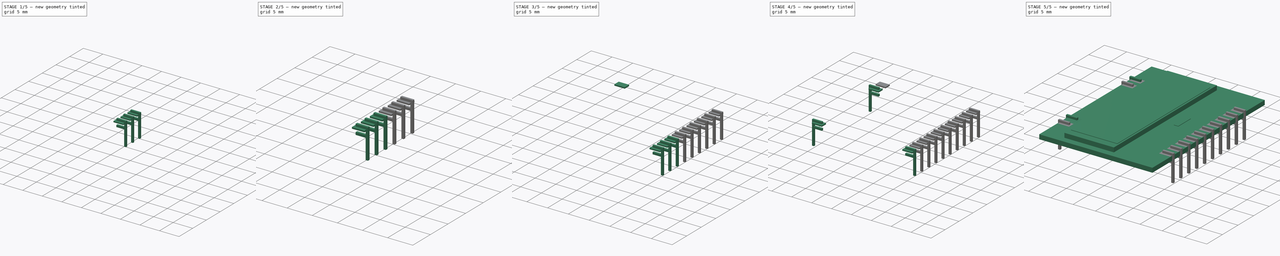
[diagram: build sequence overview — one tinted view per stage of 5, left to right]
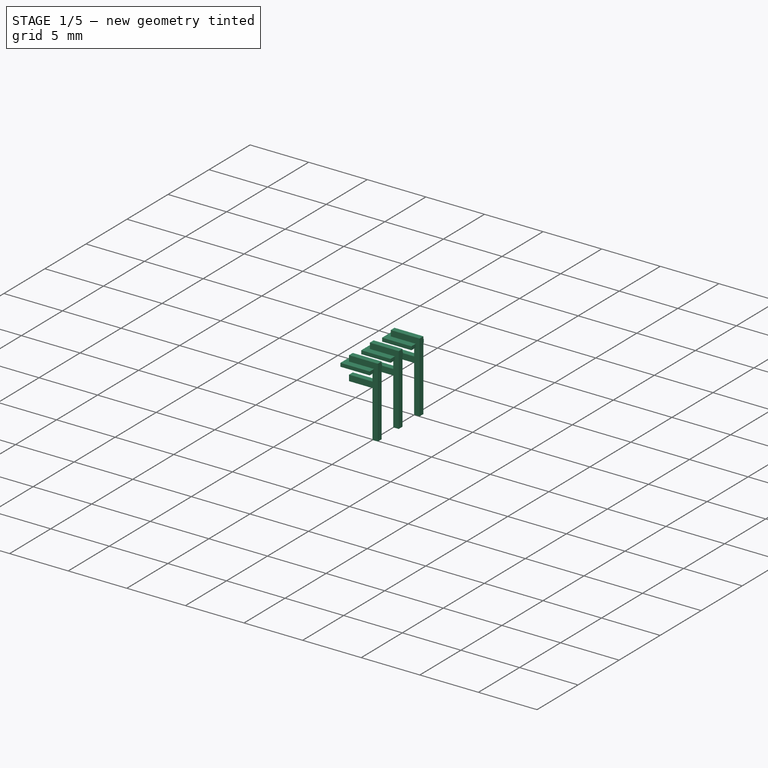
[diagram: stage 1 of 5 — iso view after this stage's code; geometry added in this stage tinted green]
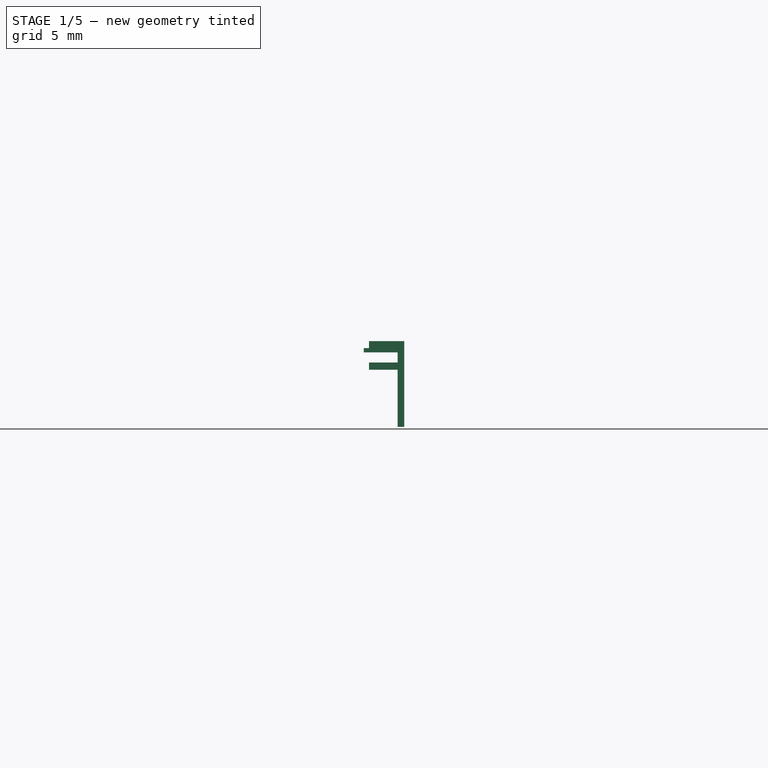
[diagram: stage 1 of 5 — front view after this stage's code; geometry added in this stage tinted green]
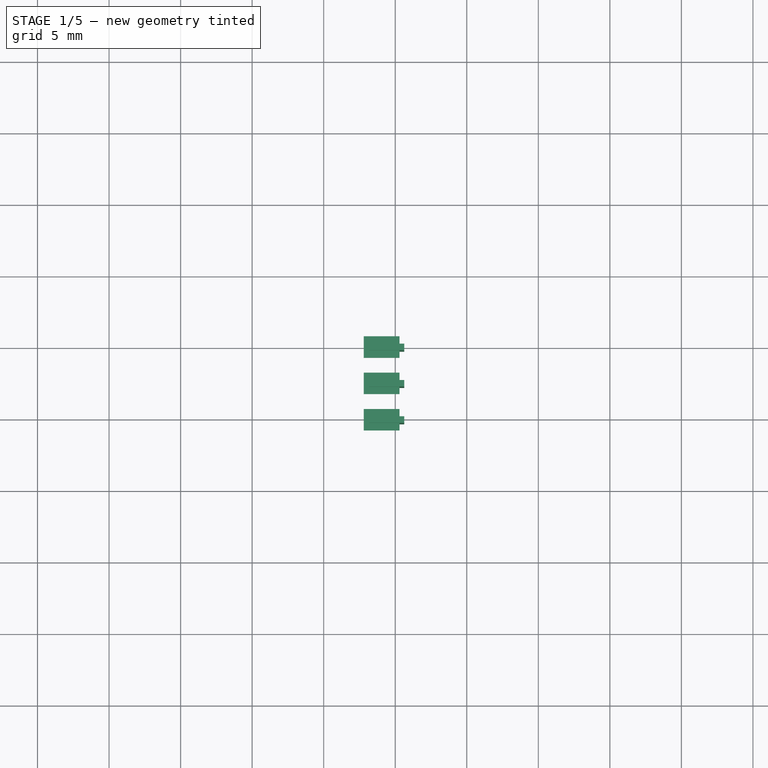
[diagram: stage 1 of 5 — top view after this stage's code; geometry added in this stage tinted green]
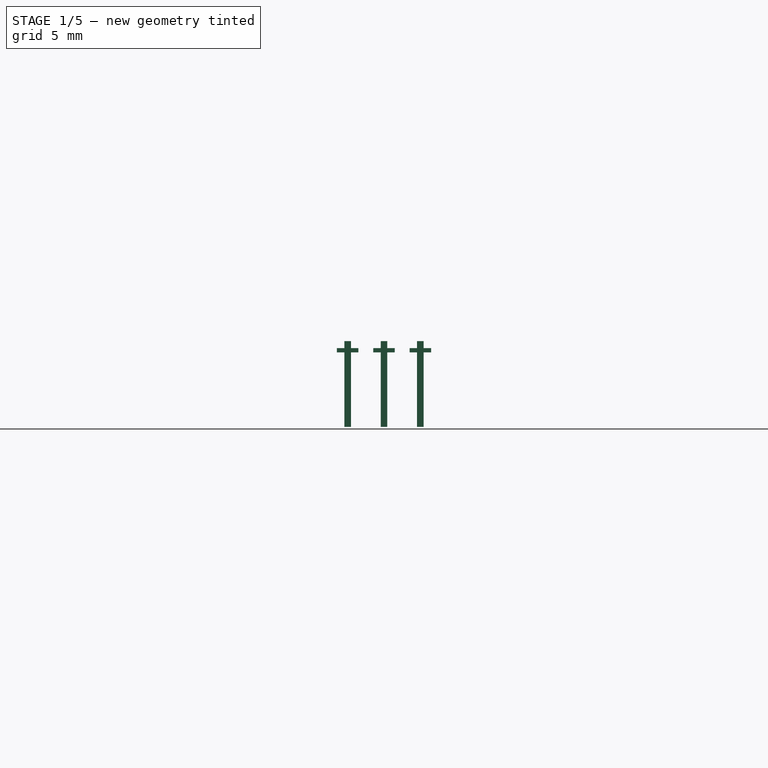
[diagram: stage 1 of 5 — right view after this stage's code; geometry added in this stage tinted green]
FCSTD DOCUMENT  (FreeCAD 0.17R11223 (Git))
Label: EA_DOGS104-A_3
License: All rights reserved
LicenseURL: http://en.wikipedia.org/wiki/All_rights_reserved
objects: Part::Box×17, Sketcher::SketchObject×15, PartDesign::Pad×15, PartDesign::Body×15, Part::MultiFuse×14, App::DocumentObjectGroup×1
note: 91 computed .brp shape members not serialized (recipe doc carries the construction recipe); baked Part::Feature solids carry a one-line shape summary decoded from their .brp

FEATURE [Sketcher::SketchObject] Sketch012
  MapMode = 5
  Placement = pos=(0,0,0) rot=(1,0,0;1.5708rad)
  Support = -> [XZ_Plane012]
  sketch-geometry (10):
    g0: LineSegment StartX=2.23 StartY=0.5 StartZ=0 EndX=2.23 EndY=1 EndZ=0
    g1: LineSegment StartX=2.23 StartY=1 StartZ=0 EndX=-0.23 EndY=1 EndZ=0
    g2: LineSegment StartX=-0.23 StartY=1 StartZ=0 EndX=-0.23 EndY=-5 EndZ=0
    g3: LineSegment StartX=-0.23 StartY=-5 StartZ=0 EndX=0.23 EndY=-5 EndZ=0
    g4: LineSegment StartX=0.23 StartY=-5 StartZ=0 EndX=0.23 EndY=-1 EndZ=0
    g5: LineSegment StartX=0.23 StartY=-1 StartZ=0 EndX=2.23 EndY=-1 EndZ=0
    g6: LineSegment StartX=2.23 StartY=-1 StartZ=0 EndX=2.23 EndY=-0.5 EndZ=0
    g7: LineSegment StartX=2.23 StartY=-0.5 StartZ=0 EndX=0.23 EndY=-0.5 EndZ=0
    g8: LineSegment StartX=0.23 StartY=-0.5 StartZ=0 EndX=0.23 EndY=0.5 EndZ=0
    g9: LineSegment StartX=0.23 StartY=0.5 StartZ=0 EndX=2.23 EndY=0.5 EndZ=0
  constraints (30):
    c: Vertical(g0)
    c: Coincident(g0,g1)
    c: Horizontal(g1)
    c: Coincident(g1,g2)
    c: Vertical(g2)
    c: Coincident(g2,g3)
    c: Horizontal(g3)
    c: Coincident(g3,g4)
    c: Vertical(g4)
    c: Coincident(g4,g5)
    c: Horizontal(g5)
    c: Coincident(g5,g6)
    c: Vertical(g6)
    c: Coincident(g6,g7)
    c: Horizontal(g7)
    c: Coincident(g7,g8)
    c: Vertical(g8)
    c: Coincident(g8,g9)
    c: Coincident(g9,g0)
    c: Horizontal(g9)
    c: DistanceY(g7,g8) = 1
    c: DistanceX(g7,g6) = 2
    c: DistanceX(g8,g0) = 2
    c: DistanceY(g5,g6) = 0.5
    c: DistanceY(g0,g0) = 0.5
    c: DistanceX(g1,g0) = 2.46
    c: DistanceY(g3,g4) = 4
    c: DistanceX(g4,g5) = 2
    c: DistanceX(g1,g-1) = 0.23
    c: DistanceY(g-1,g1) = 1
FEATURE [PartDesign::Pad] Pad012
  Length = 0.46
  Length2 = 100
  Placement = pos=(0,0,0) rot=(1,0,0;1.5708rad)
  Profile = -> Sketch012
  Type = 0
FEATURE [PartDesign::Body] Body012  label="Pin024"
  Group = -> [Sketch012,Pad012]
  Origin = -> BodyOrigin012
  Placement = pos=(0,0.23,0.5) rot=(0,0,1;0rad)
  Tip = -> Pad012
FEATURE [Part::Box] Box014  label="Kub012"
  AttacherType = Attacher::AttachEngine3D
  Height = 0.3
  Length = 2.5
  Placement = pos=(0.1,-0.75,0.71) rot=(0,0,1;0rad)
  Width = 1.5
FEATURE [Part::MultiFuse] Fusion011  label="Pin025"
  Placement = pos=(25.4,-5.08,0) rot=(0,0,1;3.14159rad)
  Shapes = -> [Body012,Box014]
FEATURE [Sketcher::SketchObject] Sketch013
  MapMode = 5
  Placement = pos=(0,0,0) rot=(1,0,0;1.5708rad)
  Support = -> [XZ_Plane013]
  sketch-geometry (10):
    g0: LineSegment StartX=2.23 StartY=0.5 StartZ=0 EndX=2.23 EndY=1 EndZ=0
    g1: LineSegment StartX=2.23 StartY=1 StartZ=0 EndX=-0.23 EndY=1 EndZ=0
    g2: LineSegment StartX=-0.23 StartY=1 StartZ=0 EndX=-0.23 EndY=-5 EndZ=0
    g3: LineSegment StartX=-0.23 StartY=-5 StartZ=0 EndX=0.23 EndY=-5 EndZ=0
    g4: LineSegment StartX=0.23 StartY=-5 StartZ=0 EndX=0.23 EndY=-1 EndZ=0
    g5: LineSegment StartX=0.23 StartY=-1 StartZ=0 EndX=2.23 EndY=-1 EndZ=0
    g6: LineSegment StartX=2.23 StartY=-1 StartZ=0 EndX=2.23 EndY=-0.5 EndZ=0
    g7: LineSegment StartX=2.23 StartY=-0.5 StartZ=0 EndX=0.23 EndY=-0.5 EndZ=0
    g8: LineSegment StartX=0.23 StartY=-0.5 StartZ=0 EndX=0.23 EndY=0.5 EndZ=0
    g9: LineSegment StartX=0.23 StartY=0.5 StartZ=0 EndX=2.23 EndY=0.5 EndZ=0
  constraints (30):
    c: Vertical(g0)
    c: Coincident(g0,g1)
    c: Horizontal(g1)
    c: Coincident(g1,g2)
    c: Vertical(g2)
    c: Coincident(g2,g3)
    c: Horizontal(g3)
    c: Coincident(g3,g4)
    c: Vertical(g4)
    c: Coincident(g4,g5)
    c: Horizontal(g5)
    c: Coincident(g5,g6)
    c: Vertical(g6)
    c: Coincident(g6,g7)
    c: Horizontal(g7)
    c: Coincident(g7,g8)
    c: Vertical(g8)
    c: Coincident(g8,g9)
    c: Coincident(g9,g0)
    c: Horizontal(g9)
    c: DistanceY(g7,g8) = 1
    c: DistanceX(g7,g6) = 2
    c: DistanceX(g8,g0) = 2
    c: DistanceY(g5,g6) = 0.5
    c: DistanceY(g0,g0) = 0.5
    c: DistanceX(g1,g0) = 2.46
    c: DistanceY(g3,g4) = 4
    c: DistanceX(g4,g5) = 2
    c: DistanceX(g1,g-1) = 0.23
    c: DistanceY(g-1,g1) = 1
FEATURE [PartDesign::Pad] Pad013
  Length = 0.46
  Length2 = 100
  Placement = pos=(0,0,0) rot=(1,0,0;1.5708rad)
  Profile = -> Sketch013
  Type = 0
FEATURE [PartDesign::Body] Body013  label="Pin026"
  Group = -> [Sketch013,Pad013]
  Origin = -> BodyOrigin013
  Placement = pos=(0,0.23,0.5) rot=(0,0,1;0rad)
  Tip = -> Pad013
FEATURE [Part::Box] Box015  label="Kub013"
  AttacherType = Attacher::AttachEngine3D
  Height = 0.3
  Length = 2.5
  Placement = pos=(0.1,-0.75,0.71) rot=(0,0,1;0rad)
  Width = 1.5
FEATURE [Part::MultiFuse] Fusion012  label="Pin027"
  Placement = pos=(25.4,-2.54,0) rot=(0,0,1;3.14159rad)
  Shapes = -> [Body013,Box015]
FEATURE [Sketcher::SketchObject] Sketch014
  MapMode = 5
  Placement = pos=(0,0,0) rot=(1,0,0;1.5708rad)
  Support = -> [XZ_Plane014]
  sketch-geometry (10):
    g0: LineSegment StartX=2.23 StartY=0.5 StartZ=0 EndX=2.23 EndY=1 EndZ=0
    g1: LineSegment StartX=2.23 StartY=1 StartZ=0 EndX=-0.23 EndY=1 EndZ=0
    g2: LineSegment StartX=-0.23 StartY=1 StartZ=0 EndX=-0.23 EndY=-5 EndZ=0
    g3: LineSegment StartX=-0.23 StartY=-5 StartZ=0 EndX=0.23 EndY=-5 EndZ=0
    g4: LineSegment StartX=0.23 StartY=-5 StartZ=0 EndX=0.23 EndY=-1 EndZ=0
    g5: LineSegment StartX=0.23 StartY=-1 StartZ=0 EndX=2.23 EndY=-1 EndZ=0
    g6: LineSegment StartX=2.23 StartY=-1 StartZ=0 EndX=2.23 EndY=-0.5 EndZ=0
    g7: LineSegment StartX=2.23 StartY=-0.5 StartZ=0 EndX=0.23 EndY=-0.5 EndZ=0
    g8: LineSegment StartX=0.23 StartY=-0.5 StartZ=0 EndX=0.23 EndY=0.5 EndZ=0
    g9: LineSegment StartX=0.23 StartY=0.5 StartZ=0 EndX=2.23 EndY=0.5 EndZ=0
  constraints (30):
    c: Vertical(g0)
    c: Coincident(g0,g1)
    c: Horizontal(g1)
    c: Coincident(g1,g2)
    c: Vertical(g2)
    c: Coincident(g2,g3)
    c: Horizontal(g3)
    c: Coincident(g3,g4)
    c: Vertical(g4)
    c: Coincident(g4,g5)
    c: Horizontal(g5)
    c: Coincident(g5,g6)
    c: Vertical(g6)
    c: Coincident(g6,g7)
    c: Horizontal(g7)
    c: Coincident(g7,g8)
    c: Vertical(g8)
    c: Coincident(g8,g9)
    c: Coincident(g9,g0)
    c: Horizontal(g9)
    c: DistanceY(g7,g8) = 1
    c: DistanceX(g7,g6) = 2
    c: DistanceX(g8,g0) = 2
    c: DistanceY(g5,g6) = 0.5
    c: DistanceY(g0,g0) = 0.5
    c: DistanceX(g1,g0) = 2.46
    c: DistanceY(g3,g4) = 4
    c: DistanceX(g4,g5) = 2
    c: DistanceX(g1,g-1) = 0.23
    c: DistanceY(g-1,g1) = 1
FEATURE [PartDesign::Pad] Pad014
  Length = 0.46
  Length2 = 100
  Placement = pos=(0,0,0) rot=(1,0,0;1.5708rad)
  Profile = -> Sketch014
  Type = 0
FEATURE [PartDesign::Body] Body014  label="Pin028"
  Group = -> [Sketch014,Pad014]
  Origin = -> BodyOrigin014
  Placement = pos=(0,0.23,0.5) rot=(0,0,1;0rad)
  Tip = -> Pad014
FEATURE [Part::Box] Box016  label="Kub014"
  AttacherType = Attacher::AttachEngine3D
  Height = 0.3
  Length = 2.5
  Placement = pos=(0.1,-0.75,0.71) rot=(0,0,1;0rad)
  Width = 1.5
FEATURE [Part::MultiFuse] Fusion013  label="Pin029"
  Placement = pos=(25.4,0,0) rot=(0,0,1;3.14159rad)
  Shapes = -> [Body014,Box016]
FEATURE [App::DocumentObjectGroup] Grupp  label="Pins"
  Group = -> [Fusion,Fusion003,Fusion001,Fusion004,Fusion002,Fusion005,Fusion006,Fusion007,Fusion008,Fusion009,Fusion010,Fusion011,Fusion012,Fusion013]
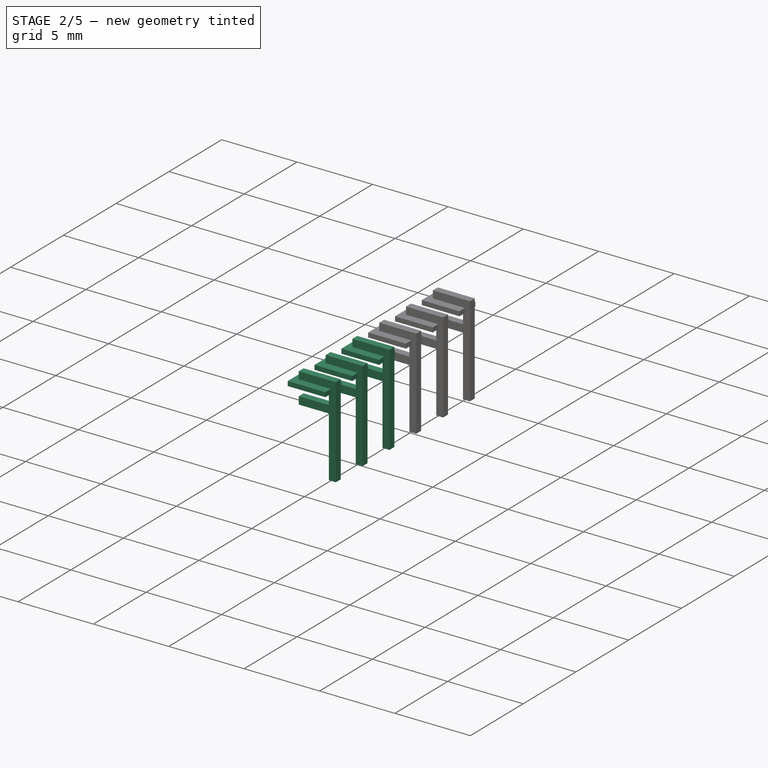
[diagram: stage 2 of 5 — iso view after this stage's code; geometry added in this stage tinted green]
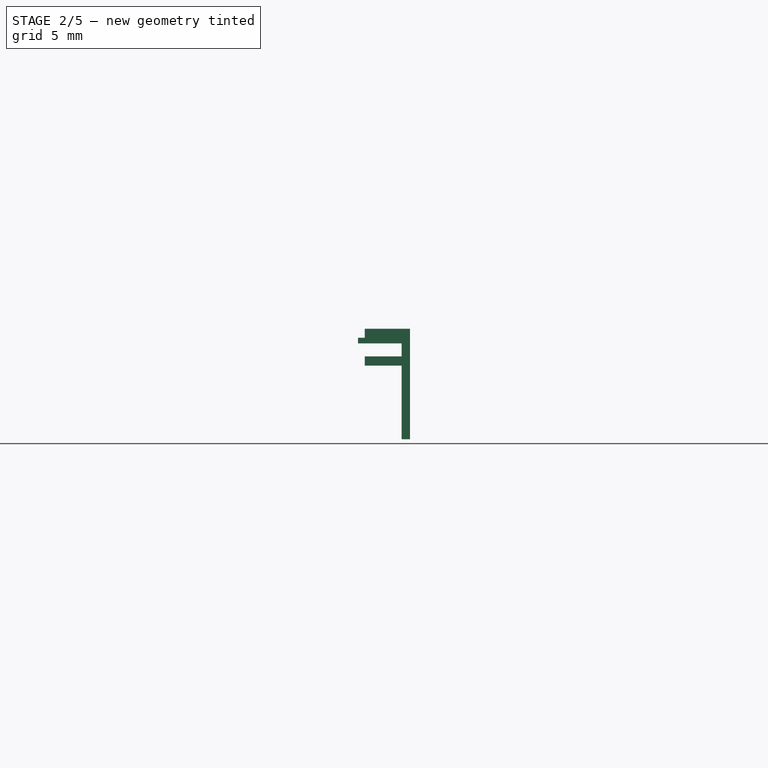
[diagram: stage 2 of 5 — front view after this stage's code; geometry added in this stage tinted green]
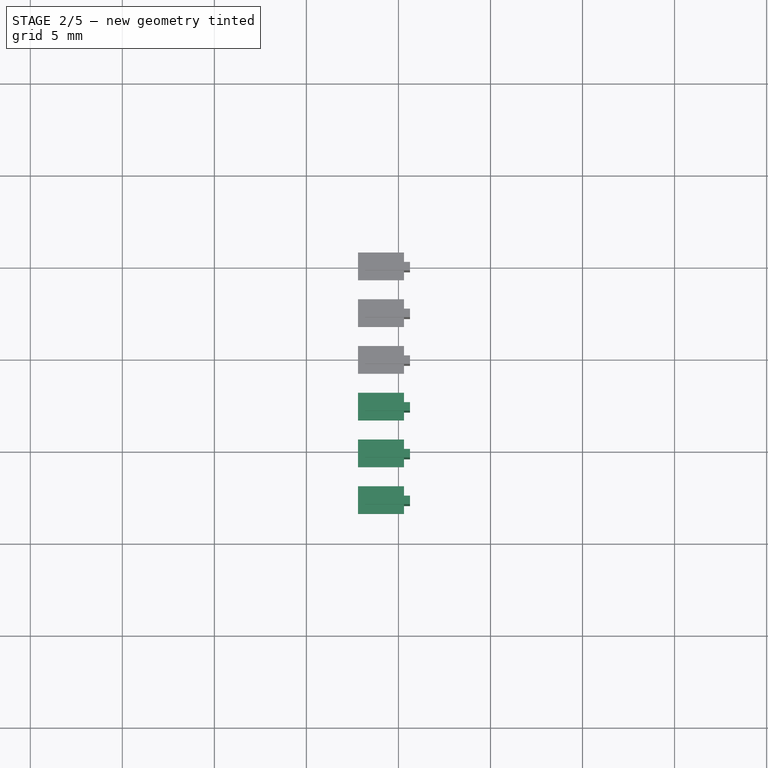
[diagram: stage 2 of 5 — top view after this stage's code; geometry added in this stage tinted green]
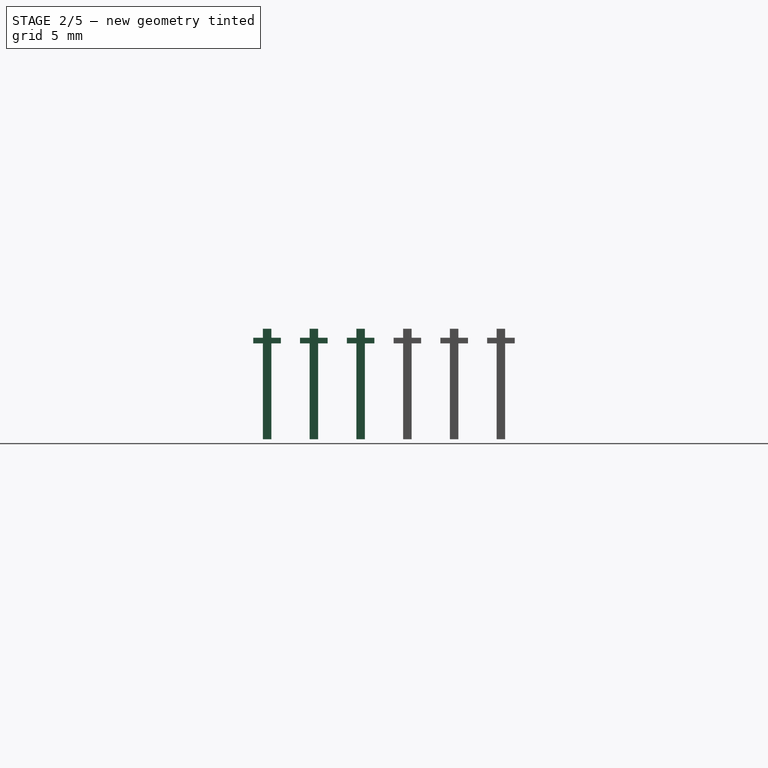
[diagram: stage 2 of 5 — right view after this stage's code; geometry added in this stage tinted green]
FEATURE [Sketcher::SketchObject] Sketch009
  MapMode = 5
  Placement = pos=(0,0,0) rot=(1,0,0;1.5708rad)
  Support = -> [XZ_Plane009]
  sketch-geometry (10):
    g0: LineSegment StartX=2.23 StartY=0.5 StartZ=0 EndX=2.23 EndY=1 EndZ=0
    g1: LineSegment StartX=2.23 StartY=1 StartZ=0 EndX=-0.23 EndY=1 EndZ=0
    g2: LineSegment StartX=-0.23 StartY=1 StartZ=0 EndX=-0.23 EndY=-5 EndZ=0
    g3: LineSegment StartX=-0.23 StartY=-5 StartZ=0 EndX=0.23 EndY=-5 EndZ=0
    g4: LineSegment StartX=0.23 StartY=-5 StartZ=0 EndX=0.23 EndY=-1 EndZ=0
    g5: LineSegment StartX=0.23 StartY=-1 StartZ=0 EndX=2.23 EndY=-1 EndZ=0
    g6: LineSegment StartX=2.23 StartY=-1 StartZ=0 EndX=2.23 EndY=-0.5 EndZ=0
    g7: LineSegment StartX=2.23 StartY=-0.5 StartZ=0 EndX=0.23 EndY=-0.5 EndZ=0
    g8: LineSegment StartX=0.23 StartY=-0.5 StartZ=0 EndX=0.23 EndY=0.5 EndZ=0
    g9: LineSegment StartX=0.23 StartY=0.5 StartZ=0 EndX=2.23 EndY=0.5 EndZ=0
  constraints (30):
    c: Vertical(g0)
    c: Coincident(g0,g1)
    c: Horizontal(g1)
    c: Coincident(g1,g2)
    c: Vertical(g2)
    c: Coincident(g2,g3)
    c: Horizontal(g3)
    c: Coincident(g3,g4)
    c: Vertical(g4)
    c: Coincident(g4,g5)
    c: Horizontal(g5)
    c: Coincident(g5,g6)
    c: Vertical(g6)
    c: Coincident(g6,g7)
    c: Horizontal(g7)
    c: Coincident(g7,g8)
    c: Vertical(g8)
    c: Coincident(g8,g9)
    c: Coincident(g9,g0)
    c: Horizontal(g9)
    c: DistanceY(g7,g8) = 1
    c: DistanceX(g7,g6) = 2
    c: DistanceX(g8,g0) = 2
    c: DistanceY(g5,g6) = 0.5
    c: DistanceY(g0,g0) = 0.5
    c: DistanceX(g1,g0) = 2.46
    c: DistanceY(g3,g4) = 4
    c: DistanceX(g4,g5) = 2
    c: DistanceX(g1,g-1) = 0.23
    c: DistanceY(g-1,g1) = 1
FEATURE [PartDesign::Pad] Pad009
  Length = 0.46
  Length2 = 100
  Placement = pos=(0,0,0) rot=(1,0,0;1.5708rad)
  Profile = -> Sketch009
  Type = 0
FEATURE [PartDesign::Body] Body009  label="Pin018"
  Group = -> [Sketch009,Pad009]
  Origin = -> BodyOrigin009
  Placement = pos=(0,0.23,0.5) rot=(0,0,1;0rad)
  Tip = -> Pad009
FEATURE [Part::Box] Box011  label="Kub009"
  AttacherType = Attacher::AttachEngine3D
  Height = 0.3
  Length = 2.5
  Placement = pos=(0.1,-0.75,0.71) rot=(0,0,1;0rad)
  Width = 1.5
FEATURE [Part::MultiFuse] Fusion008  label="Pin019"
  Placement = pos=(25.4,-12.7,0) rot=(0,0,1;3.14159rad)
  Shapes = -> [Body009,Box011]
FEATURE [Sketcher::SketchObject] Sketch010
  MapMode = 5
  Placement = pos=(0,0,0) rot=(1,0,0;1.5708rad)
  Support = -> [XZ_Plane010]
  sketch-geometry (10):
    g0: LineSegment StartX=2.23 StartY=0.5 StartZ=0 EndX=2.23 EndY=1 EndZ=0
    g1: LineSegment StartX=2.23 StartY=1 StartZ=0 EndX=-0.23 EndY=1 EndZ=0
    g2: LineSegment StartX=-0.23 StartY=1 StartZ=0 EndX=-0.23 EndY=-5 EndZ=0
    g3: LineSegment StartX=-0.23 StartY=-5 StartZ=0 EndX=0.23 EndY=-5 EndZ=0
    g4: LineSegment StartX=0.23 StartY=-5 StartZ=0 EndX=0.23 EndY=-1 EndZ=0
    g5: LineSegment StartX=0.23 StartY=-1 StartZ=0 EndX=2.23 EndY=-1 EndZ=0
    g6: LineSegment StartX=2.23 StartY=-1 StartZ=0 EndX=2.23 EndY=-0.5 EndZ=0
    g7: LineSegment StartX=2.23 StartY=-0.5 StartZ=0 EndX=0.23 EndY=-0.5 EndZ=0
    g8: LineSegment StartX=0.23 StartY=-0.5 StartZ=0 EndX=0.23 EndY=0.5 EndZ=0
    g9: LineSegment StartX=0.23 StartY=0.5 StartZ=0 EndX=2.23 EndY=0.5 EndZ=0
  constraints (30):
    c: Vertical(g0)
    c: Coincident(g0,g1)
    c: Horizontal(g1)
    c: Coincident(g1,g2)
    c: Vertical(g2)
    c: Coincident(g2,g3)
    c: Horizontal(g3)
    c: Coincident(g3,g4)
    c: Vertical(g4)
    c: Coincident(g4,g5)
    c: Horizontal(g5)
    c: Coincident(g5,g6)
    c: Vertical(g6)
    c: Coincident(g6,g7)
    c: Horizontal(g7)
    c: Coincident(g7,g8)
    c: Vertical(g8)
    c: Coincident(g8,g9)
    c: Coincident(g9,g0)
    c: Horizontal(g9)
    c: DistanceY(g7,g8) = 1
    c: DistanceX(g7,g6) = 2
    c: DistanceX(g8,g0) = 2
    c: DistanceY(g5,g6) = 0.5
    c: DistanceY(g0,g0) = 0.5
    c: DistanceX(g1,g0) = 2.46
    c: DistanceY(g3,g4) = 4
    c: DistanceX(g4,g5) = 2
    c: DistanceX(g1,g-1) = 0.23
    c: DistanceY(g-1,g1) = 1
FEATURE [PartDesign::Pad] Pad010
  Length = 0.46
  Length2 = 100
  Placement = pos=(0,0,0) rot=(1,0,0;1.5708rad)
  Profile = -> Sketch010
  Type = 0
FEATURE [PartDesign::Body] Body010  label="Pin020"
  Group = -> [Sketch010,Pad010]
  Origin = -> BodyOrigin010
  Placement = pos=(0,0.23,0.5) rot=(0,0,1;0rad)
  Tip = -> Pad010
FEATURE [Part::Box] Box012  label="Kub010"
  AttacherType = Attacher::AttachEngine3D
  Height = 0.3
  Length = 2.5
  Placement = pos=(0.1,-0.75,0.71) rot=(0,0,1;0rad)
  Width = 1.5
FEATURE [Part::MultiFuse] Fusion009  label="Pin021"
  Placement = pos=(25.4,-10.16,0) rot=(0,0,1;3.14159rad)
  Shapes = -> [Body010,Box012]
FEATURE [Sketcher::SketchObject] Sketch011
  MapMode = 5
  Placement = pos=(0,0,0) rot=(1,0,0;1.5708rad)
  Support = -> [XZ_Plane011]
  sketch-geometry (10):
    g0: LineSegment StartX=2.23 StartY=0.5 StartZ=0 EndX=2.23 EndY=1 EndZ=0
    g1: LineSegment StartX=2.23 StartY=1 StartZ=0 EndX=-0.23 EndY=1 EndZ=0
    g2: LineSegment StartX=-0.23 StartY=1 StartZ=0 EndX=-0.23 EndY=-5 EndZ=0
    g3: LineSegment StartX=-0.23 StartY=-5 StartZ=0 EndX=0.23 EndY=-5 EndZ=0
    g4: LineSegment StartX=0.23 StartY=-5 StartZ=0 EndX=0.23 EndY=-1 EndZ=0
    g5: LineSegment StartX=0.23 StartY=-1 StartZ=0 EndX=2.23 EndY=-1 EndZ=0
    g6: LineSegment StartX=2.23 StartY=-1 StartZ=0 EndX=2.23 EndY=-0.5 EndZ=0
    g7: LineSegment StartX=2.23 StartY=-0.5 StartZ=0 EndX=0.23 EndY=-0.5 EndZ=0
    g8: LineSegment StartX=0.23 StartY=-0.5 StartZ=0 EndX=0.23 EndY=0.5 EndZ=0
    g9: LineSegment StartX=0.23 StartY=0.5 StartZ=0 EndX=2.23 EndY=0.5 EndZ=0
  constraints (30):
    c: Vertical(g0)
    c: Coincident(g0,g1)
    c: Horizontal(g1)
    c: Coincident(g1,g2)
    c: Vertical(g2)
    c: Coincident(g2,g3)
    c: Horizontal(g3)
    c: Coincident(g3,g4)
    c: Vertical(g4)
    c: Coincident(g4,g5)
    c: Horizontal(g5)
    c: Coincident(g5,g6)
    c: Vertical(g6)
    c: Coincident(g6,g7)
    c: Horizontal(g7)
    c: Coincident(g7,g8)
    c: Vertical(g8)
    c: Coincident(g8,g9)
    c: Coincident(g9,g0)
    c: Horizontal(g9)
    c: DistanceY(g7,g8) = 1
    c: DistanceX(g7,g6) = 2
    c: DistanceX(g8,g0) = 2
    c: DistanceY(g5,g6) = 0.5
    c: DistanceY(g0,g0) = 0.5
    c: DistanceX(g1,g0) = 2.46
    c: DistanceY(g3,g4) = 4
    c: DistanceX(g4,g5) = 2
    c: DistanceX(g1,g-1) = 0.23
    c: DistanceY(g-1,g1) = 1
FEATURE [PartDesign::Pad] Pad011
  Length = 0.46
  Length2 = 100
  Placement = pos=(0,0,0) rot=(1,0,0;1.5708rad)
  Profile = -> Sketch011
  Type = 0
FEATURE [PartDesign::Body] Body011  label="Pin022"
  Group = -> [Sketch011,Pad011]
  Origin = -> BodyOrigin011
  Placement = pos=(0,0.23,0.5) rot=(0,0,1;0rad)
  Tip = -> Pad011
FEATURE [Part::Box] Box013  label="Kub011"
  AttacherType = Attacher::AttachEngine3D
  Height = 0.3
  Length = 2.5
  Placement = pos=(0.1,-0.75,0.71) rot=(0,0,1;0rad)
  Width = 1.5
FEATURE [Part::MultiFuse] Fusion010  label="Pin023"
  Placement = pos=(25.4,-7.62,0) rot=(0,0,1;3.14159rad)
  Shapes = -> [Body011,Box013]
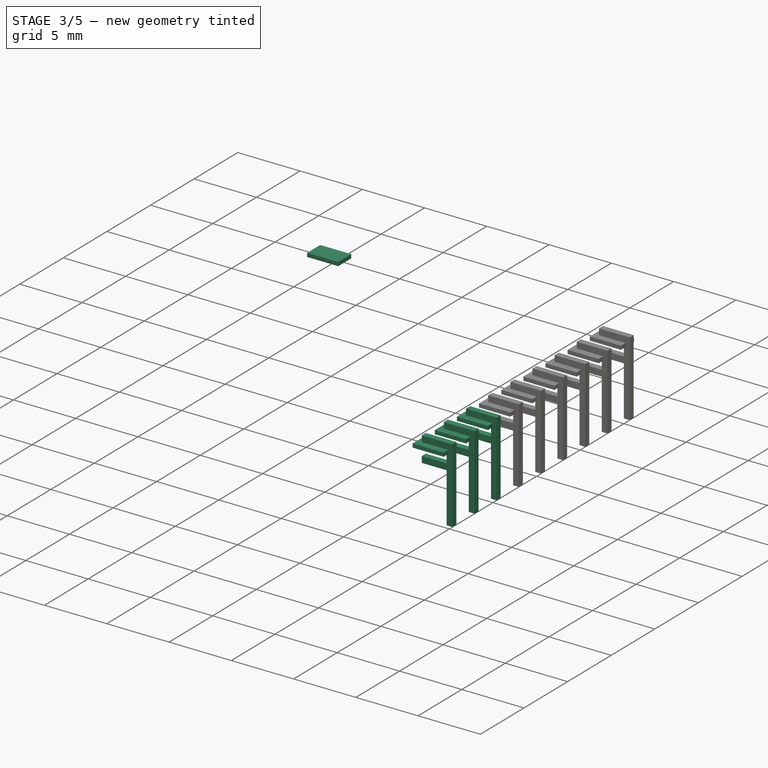
[diagram: stage 3 of 5 — iso view after this stage's code; geometry added in this stage tinted green]
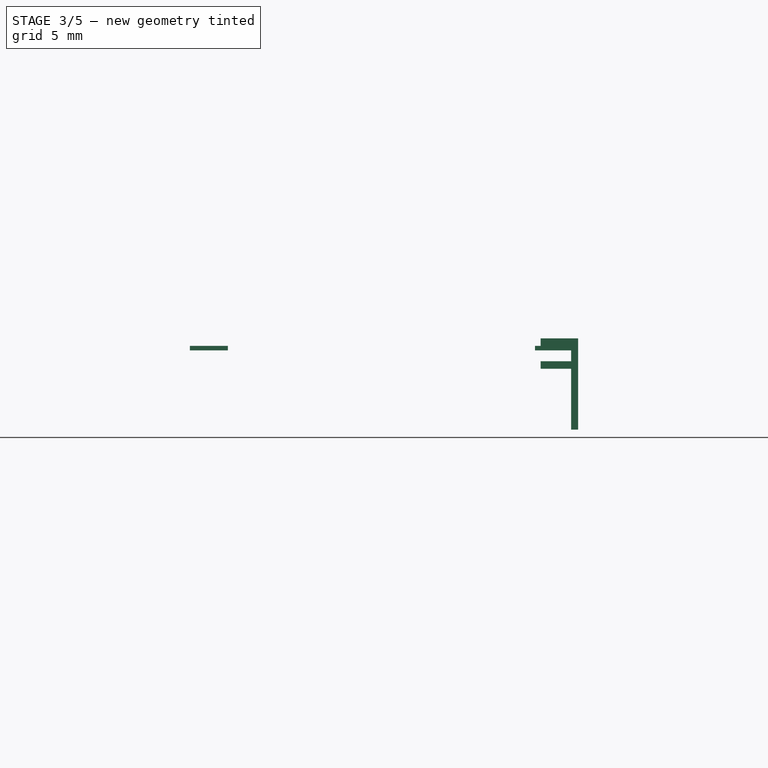
[diagram: stage 3 of 5 — front view after this stage's code; geometry added in this stage tinted green]
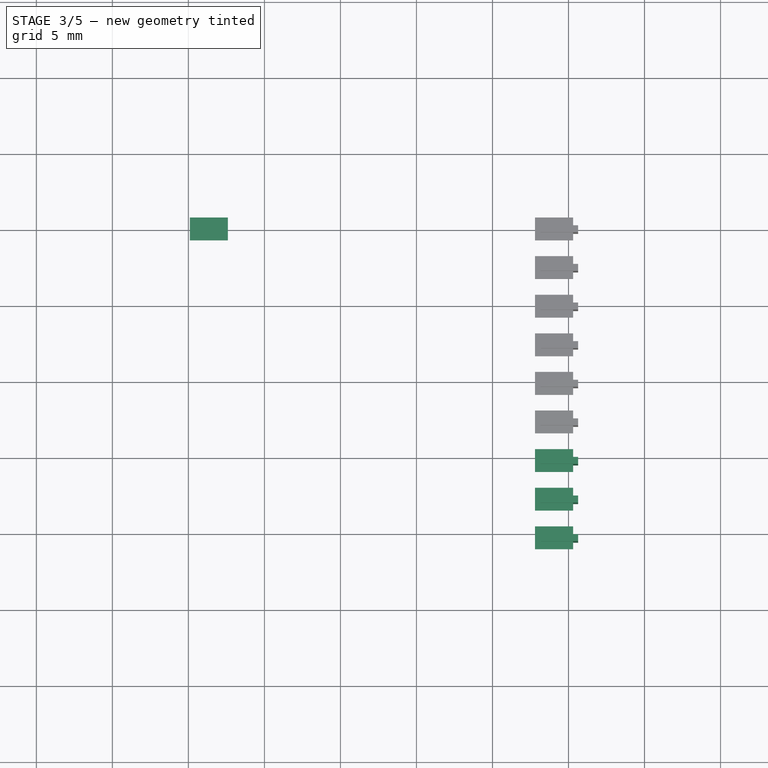
[diagram: stage 3 of 5 — top view after this stage's code; geometry added in this stage tinted green]
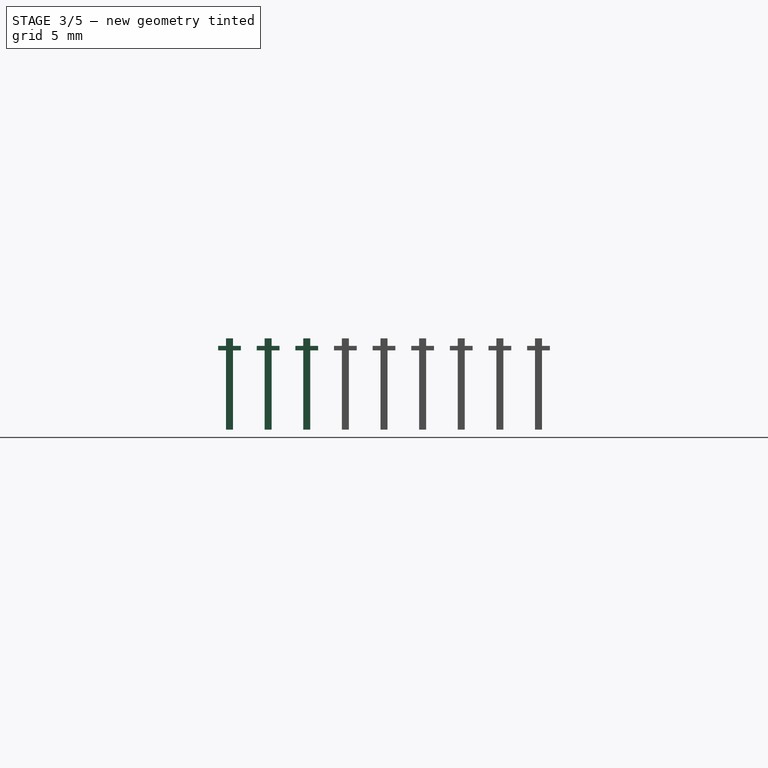
[diagram: stage 3 of 5 — right view after this stage's code; geometry added in this stage tinted green]
FEATURE [PartDesign::Body] Body005  label="Pin007"
  Group = -> [Sketch005,Pad005]
  Origin = -> BodyOrigin005
  Placement = pos=(0,0.23,0.5) rot=(0,0,1;0rad)
  Tip = -> Pad005
FEATURE [Part::Box] Box007  label="Kub005"
  AttacherType = Attacher::AttachEngine3D
  Height = 0.3
  Length = 2.5
  Placement = pos=(0.1,-0.75,0.71) rot=(0,0,1;0rad)
  Width = 1.5
FEATURE [Sketcher::SketchObject] Sketch006
  MapMode = 5
  Placement = pos=(0,0,0) rot=(1,0,0;1.5708rad)
  Support = -> [XZ_Plane006]
  sketch-geometry (10):
    g0: LineSegment StartX=2.23 StartY=0.5 StartZ=0 EndX=2.23 EndY=1 EndZ=0
    g1: LineSegment StartX=2.23 StartY=1 StartZ=0 EndX=-0.23 EndY=1 EndZ=0
    g2: LineSegment StartX=-0.23 StartY=1 StartZ=0 EndX=-0.23 EndY=-5 EndZ=0
    g3: LineSegment StartX=-0.23 StartY=-5 StartZ=0 EndX=0.23 EndY=-5 EndZ=0
    g4: LineSegment StartX=0.23 StartY=-5 StartZ=0 EndX=0.23 EndY=-1 EndZ=0
    g5: LineSegment StartX=0.23 StartY=-1 StartZ=0 EndX=2.23 EndY=-1 EndZ=0
    g6: LineSegment StartX=2.23 StartY=-1 StartZ=0 EndX=2.23 EndY=-0.5 EndZ=0
    g7: LineSegment StartX=2.23 StartY=-0.5 StartZ=0 EndX=0.23 EndY=-0.5 EndZ=0
    g8: LineSegment StartX=0.23 StartY=-0.5 StartZ=0 EndX=0.23 EndY=0.5 EndZ=0
    g9: LineSegment StartX=0.23 StartY=0.5 StartZ=0 EndX=2.23 EndY=0.5 EndZ=0
  constraints (30):
    c: Vertical(g0)
    c: Coincident(g0,g1)
    c: Horizontal(g1)
    c: Coincident(g1,g2)
    c: Vertical(g2)
    c: Coincident(g2,g3)
    c: Horizontal(g3)
    c: Coincident(g3,g4)
    c: Vertical(g4)
    c: Coincident(g4,g5)
    c: Horizontal(g5)
    c: Coincident(g5,g6)
    c: Vertical(g6)
    c: Coincident(g6,g7)
    c: Horizontal(g7)
    c: Coincident(g7,g8)
    c: Vertical(g8)
    c: Coincident(g8,g9)
    c: Coincident(g9,g0)
    c: Horizontal(g9)
    c: DistanceY(g7,g8) = 1
    c: DistanceX(g7,g6) = 2
    c: DistanceX(g8,g0) = 2
    c: DistanceY(g5,g6) = 0.5
    c: DistanceY(g0,g0) = 0.5
    c: DistanceX(g1,g0) = 2.46
    c: DistanceY(g3,g4) = 4
    c: DistanceX(g4,g5) = 2
    c: DistanceX(g1,g-1) = 0.23
    c: DistanceY(g-1,g1) = 1
FEATURE [PartDesign::Pad] Pad006
  Length = 0.46
  Length2 = 100
  Placement = pos=(0,0,0) rot=(1,0,0;1.5708rad)
  Profile = -> Sketch006
  Type = 0
FEATURE [PartDesign::Body] Body006  label="Pin012"
  Group = -> [Sketch006,Pad006]
  Origin = -> BodyOrigin006
  Placement = pos=(0,0.23,0.5) rot=(0,0,1;0rad)
  Tip = -> Pad006
FEATURE [Part::Box] Box008  label="Kub006"
  AttacherType = Attacher::AttachEngine3D
  Height = 0.3
  Length = 2.5
  Placement = pos=(0.1,-0.75,0.71) rot=(0,0,1;0rad)
  Width = 1.5
FEATURE [Part::MultiFuse] Fusion005  label="Pin013"
  Placement = pos=(25.4,-20.32,0) rot=(0,0,1;3.14159rad)
  Shapes = -> [Body006,Box008]
FEATURE [Sketcher::SketchObject] Sketch007
  MapMode = 5
  Placement = pos=(0,0,0) rot=(1,0,0;1.5708rad)
  Support = -> [XZ_Plane007]
  sketch-geometry (10):
    g0: LineSegment StartX=2.23 StartY=0.5 StartZ=0 EndX=2.23 EndY=1 EndZ=0
    g1: LineSegment StartX=2.23 StartY=1 StartZ=0 EndX=-0.23 EndY=1 EndZ=0
    g2: LineSegment StartX=-0.23 StartY=1 StartZ=0 EndX=-0.23 EndY=-5 EndZ=0
    g3: LineSegment StartX=-0.23 StartY=-5 StartZ=0 EndX=0.23 EndY=-5 EndZ=0
    g4: LineSegment StartX=0.23 StartY=-5 StartZ=0 EndX=0.23 EndY=-1 EndZ=0
    g5: LineSegment StartX=0.23 StartY=-1 StartZ=0 EndX=2.23 EndY=-1 EndZ=0
    g6: LineSegment StartX=2.23 StartY=-1 StartZ=0 EndX=2.23 EndY=-0.5 EndZ=0
    g7: LineSegment StartX=2.23 StartY=-0.5 StartZ=0 EndX=0.23 EndY=-0.5 EndZ=0
    g8: LineSegment StartX=0.23 StartY=-0.5 StartZ=0 EndX=0.23 EndY=0.5 EndZ=0
    g9: LineSegment StartX=0.23 StartY=0.5 StartZ=0 EndX=2.23 EndY=0.5 EndZ=0
  constraints (30):
    c: Vertical(g0)
    c: Coincident(g0,g1)
    c: Horizontal(g1)
    c: Coincident(g1,g2)
    c: Vertical(g2)
    c: Coincident(g2,g3)
    c: Horizontal(g3)
    c: Coincident(g3,g4)
    c: Vertical(g4)
    c: Coincident(g4,g5)
    c: Horizontal(g5)
    c: Coincident(g5,g6)
    c: Vertical(g6)
    c: Coincident(g6,g7)
    c: Horizontal(g7)
    c: Coincident(g7,g8)
    c: Vertical(g8)
    c: Coincident(g8,g9)
    c: Coincident(g9,g0)
    c: Horizontal(g9)
    c: DistanceY(g7,g8) = 1
    c: DistanceX(g7,g6) = 2
    c: DistanceX(g8,g0) = 2
    c: DistanceY(g5,g6) = 0.5
    c: DistanceY(g0,g0) = 0.5
    c: DistanceX(g1,g0) = 2.46
    c: DistanceY(g3,g4) = 4
    c: DistanceX(g4,g5) = 2
    c: DistanceX(g1,g-1) = 0.23
    c: DistanceY(g-1,g1) = 1
FEATURE [PartDesign::Pad] Pad007
  Length = 0.46
  Length2 = 100
  Placement = pos=(0,0,0) rot=(1,0,0;1.5708rad)
  Profile = -> Sketch007
  Type = 0
FEATURE [PartDesign::Body] Body007  label="Pin014"
  Group = -> [Sketch007,Pad007]
  Origin = -> BodyOrigin007
  Placement = pos=(0,0.23,0.5) rot=(0,0,1;0rad)
  Tip = -> Pad007
FEATURE [Part::Box] Box009  label="Kub007"
  AttacherType = Attacher::AttachEngine3D
  Height = 0.3
  Length = 2.5
  Placement = pos=(0.1,-0.75,0.71) rot=(0,0,1;0rad)
  Width = 1.5
FEATURE [Part::MultiFuse] Fusion006  label="Pin015"
  Placement = pos=(25.4,-17.78,0) rot=(0,0,1;3.14159rad)
  Shapes = -> [Body007,Box009]
FEATURE [Sketcher::SketchObject] Sketch008
  MapMode = 5
  Placement = pos=(0,0,0) rot=(1,0,0;1.5708rad)
  Support = -> [XZ_Plane008]
  sketch-geometry (10):
    g0: LineSegment StartX=2.23 StartY=0.5 StartZ=0 EndX=2.23 EndY=1 EndZ=0
    g1: LineSegment StartX=2.23 StartY=1 StartZ=0 EndX=-0.23 EndY=1 EndZ=0
    g2: LineSegment StartX=-0.23 StartY=1 StartZ=0 EndX=-0.23 EndY=-5 EndZ=0
    g3: LineSegment StartX=-0.23 StartY=-5 StartZ=0 EndX=0.23 EndY=-5 EndZ=0
    g4: LineSegment StartX=0.23 StartY=-5 StartZ=0 EndX=0.23 EndY=-1 EndZ=0
    g5: LineSegment StartX=0.23 StartY=-1 StartZ=0 EndX=2.23 EndY=-1 EndZ=0
    g6: LineSegment StartX=2.23 StartY=-1 StartZ=0 EndX=2.23 EndY=-0.5 EndZ=0
    g7: LineSegment StartX=2.23 StartY=-0.5 StartZ=0 EndX=0.23 EndY=-0.5 EndZ=0
    g8: LineSegment StartX=0.23 StartY=-0.5 StartZ=0 EndX=0.23 EndY=0.5 EndZ=0
    g9: LineSegment StartX=0.23 StartY=0.5 StartZ=0 EndX=2.23 EndY=0.5 EndZ=0
  constraints (30):
    c: Vertical(g0)
    c: Coincident(g0,g1)
    c: Horizontal(g1)
    c: Coincident(g1,g2)
    c: Vertical(g2)
    c: Coincident(g2,g3)
    c: Horizontal(g3)
    c: Coincident(g3,g4)
    c: Vertical(g4)
    c: Coincident(g4,g5)
    c: Horizontal(g5)
    c: Coincident(g5,g6)
    c: Vertical(g6)
    c: Coincident(g6,g7)
    c: Horizontal(g7)
    c: Coincident(g7,g8)
    c: Vertical(g8)
    c: Coincident(g8,g9)
    c: Coincident(g9,g0)
    c: Horizontal(g9)
    c: DistanceY(g7,g8) = 1
    c: DistanceX(g7,g6) = 2
    c: DistanceX(g8,g0) = 2
    c: DistanceY(g5,g6) = 0.5
    c: DistanceY(g0,g0) = 0.5
    c: DistanceX(g1,g0) = 2.46
    c: DistanceY(g3,g4) = 4
    c: DistanceX(g4,g5) = 2
    c: DistanceX(g1,g-1) = 0.23
    c: DistanceY(g-1,g1) = 1
FEATURE [PartDesign::Pad] Pad008
  Length = 0.46
  Length2 = 100
  Placement = pos=(0,0,0) rot=(1,0,0;1.5708rad)
  Profile = -> Sketch008
  Type = 0
FEATURE [PartDesign::Body] Body008  label="Pin016"
  Group = -> [Sketch008,Pad008]
  Origin = -> BodyOrigin008
  Placement = pos=(0,0.23,0.5) rot=(0,0,1;0rad)
  Tip = -> Pad008
FEATURE [Part::Box] Box010  label="Kub008"
  AttacherType = Attacher::AttachEngine3D
  Height = 0.3
  Length = 2.5
  Placement = pos=(0.1,-0.75,0.71) rot=(0,0,1;0rad)
  Width = 1.5
FEATURE [Part::MultiFuse] Fusion007  label="Pin017"
  Placement = pos=(25.4,-15.24,0) rot=(0,0,1;3.14159rad)
  Shapes = -> [Body008,Box010]
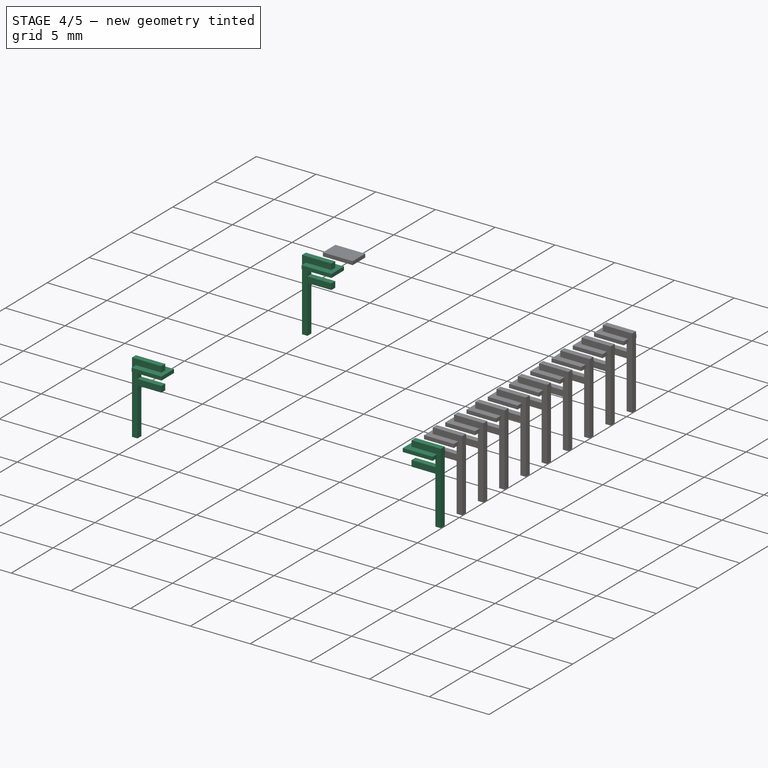
[diagram: stage 4 of 5 — iso view after this stage's code; geometry added in this stage tinted green]
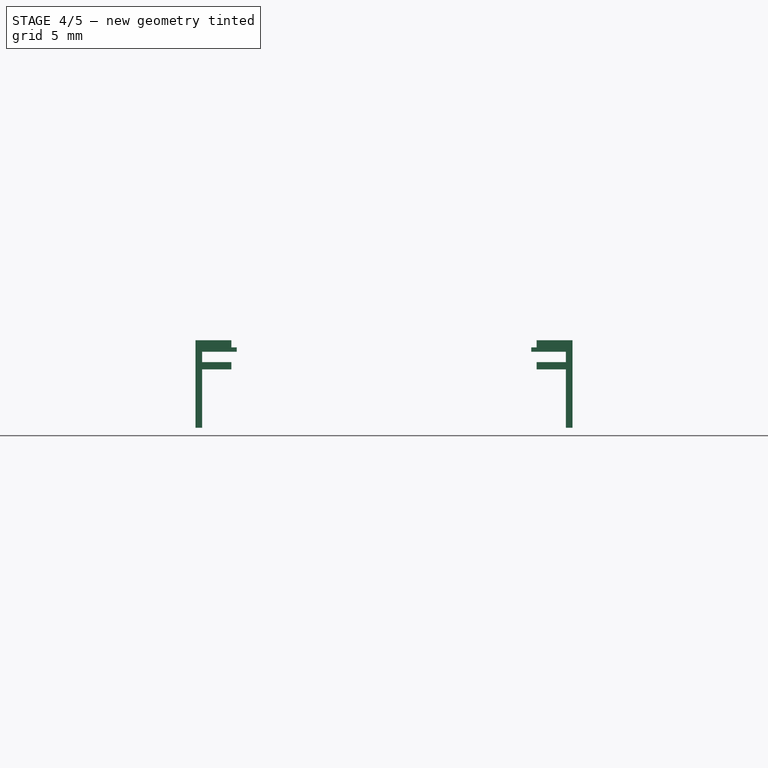
[diagram: stage 4 of 5 — front view after this stage's code; geometry added in this stage tinted green]
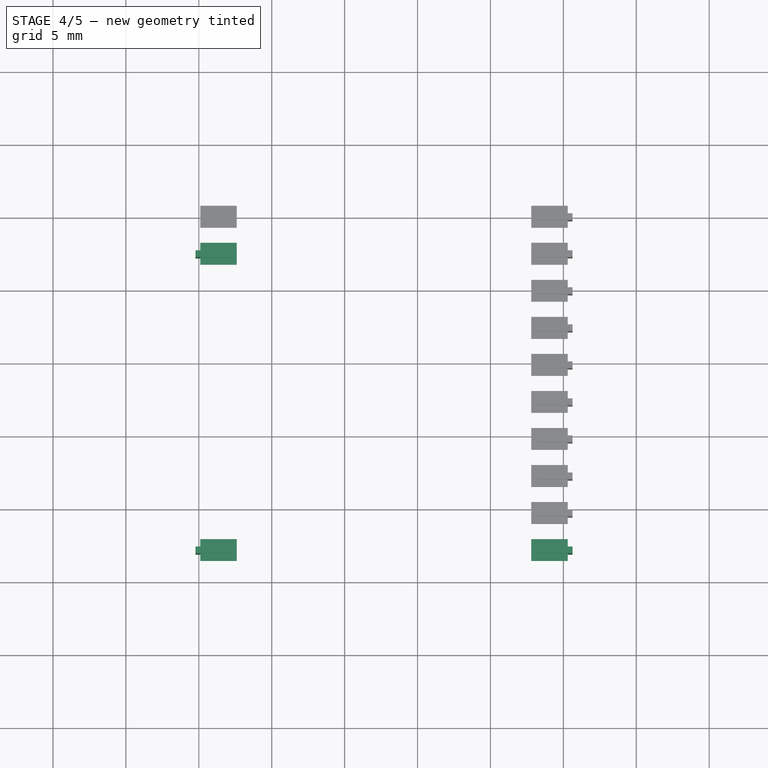
[diagram: stage 4 of 5 — top view after this stage's code; geometry added in this stage tinted green]
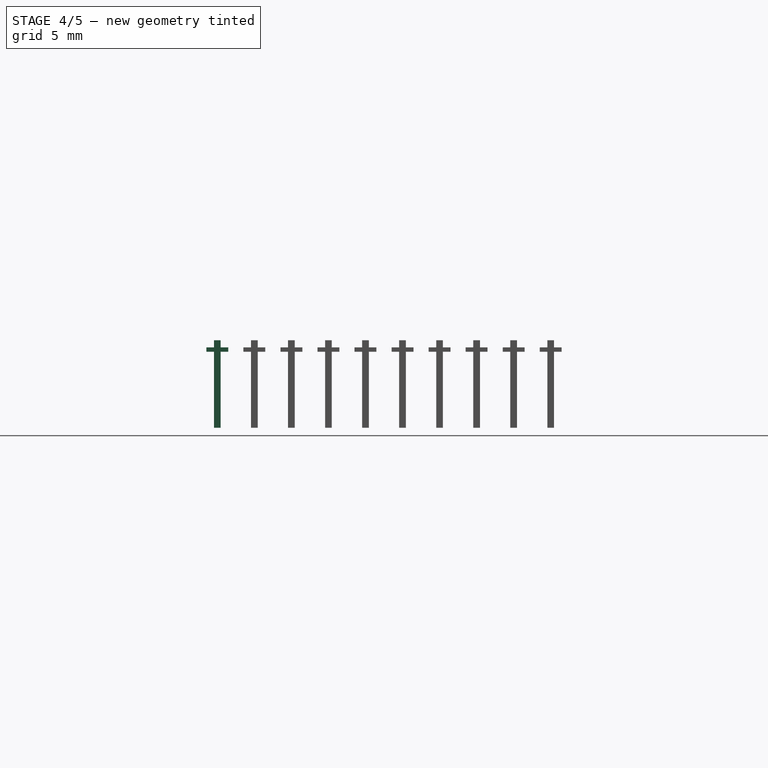
[diagram: stage 4 of 5 — right view after this stage's code; geometry added in this stage tinted green]
FEATURE [PartDesign::Body] Body002  label="Pin003"
  Group = -> [Sketch002,Pad002]
  Origin = -> BodyOrigin002
  Placement = pos=(0,0.23,0.5) rot=(0,0,1;0rad)
  Tip = -> Pad002
FEATURE [Part::Box] Box001  label="Kub001"
  AttacherType = Attacher::AttachEngine3D
  Height = 0.3
  Length = 2.5
  Placement = pos=(0.1,-0.75,0.71) rot=(0,0,1;0rad)
  Width = 1.5
FEATURE [Sketcher::SketchObject] Sketch003
  MapMode = 5
  Placement = pos=(0,0,0) rot=(1,0,0;1.5708rad)
  Support = -> [XZ_Plane003]
  sketch-geometry (10):
    g0: LineSegment StartX=2.23 StartY=0.5 StartZ=0 EndX=2.23 EndY=1 EndZ=0
    g1: LineSegment StartX=2.23 StartY=1 StartZ=0 EndX=-0.23 EndY=1 EndZ=0
    g2: LineSegment StartX=-0.23 StartY=1 StartZ=0 EndX=-0.23 EndY=-5 EndZ=0
    g3: LineSegment StartX=-0.23 StartY=-5 StartZ=0 EndX=0.23 EndY=-5 EndZ=0
    g4: LineSegment StartX=0.23 StartY=-5 StartZ=0 EndX=0.23 EndY=-1 EndZ=0
    g5: LineSegment StartX=0.23 StartY=-1 StartZ=0 EndX=2.23 EndY=-1 EndZ=0
    g6: LineSegment StartX=2.23 StartY=-1 StartZ=0 EndX=2.23 EndY=-0.5 EndZ=0
    g7: LineSegment StartX=2.23 StartY=-0.5 StartZ=0 EndX=0.23 EndY=-0.5 EndZ=0
    g8: LineSegment StartX=0.23 StartY=-0.5 StartZ=0 EndX=0.23 EndY=0.5 EndZ=0
    g9: LineSegment StartX=0.23 StartY=0.5 StartZ=0 EndX=2.23 EndY=0.5 EndZ=0
  constraints (30):
    c: Vertical(g0)
    c: Coincident(g0,g1)
    c: Horizontal(g1)
    c: Coincident(g1,g2)
    c: Vertical(g2)
    c: Coincident(g2,g3)
    c: Horizontal(g3)
    c: Coincident(g3,g4)
    c: Vertical(g4)
    c: Coincident(g4,g5)
    c: Horizontal(g5)
    c: Coincident(g5,g6)
    c: Vertical(g6)
    c: Coincident(g6,g7)
    c: Horizontal(g7)
    c: Coincident(g7,g8)
    c: Vertical(g8)
    c: Coincident(g8,g9)
    c: Coincident(g9,g0)
    c: Horizontal(g9)
    c: DistanceY(g7,g8) = 1
    c: DistanceX(g7,g6) = 2
    c: DistanceX(g8,g0) = 2
    c: DistanceY(g5,g6) = 0.5
    c: DistanceY(g0,g0) = 0.5
    c: DistanceX(g1,g0) = 2.46
    c: DistanceY(g3,g4) = 4
    c: DistanceX(g4,g5) = 2
    c: DistanceX(g1,g-1) = 0.23
    c: DistanceY(g-1,g1) = 1
FEATURE [PartDesign::Pad] Pad003
  Length = 0.46
  Length2 = 100
  Placement = pos=(0,0,0) rot=(1,0,0;1.5708rad)
  Profile = -> Sketch003
  Type = 0
FEATURE [PartDesign::Body] Body003  label="Pin004"
  Group = -> [Sketch003,Pad003]
  Origin = -> BodyOrigin003
  Placement = pos=(0,0.23,0.5) rot=(0,0,1;0rad)
  Tip = -> Pad003
FEATURE [Part::Box] Box002  label="Kub002"
  AttacherType = Attacher::AttachEngine3D
  Height = 0.3
  Length = 2.5
  Placement = pos=(0.1,-0.75,0.71) rot=(0,0,1;0rad)
  Width = 1.5
FEATURE [Part::MultiFuse] Fusion002  label="Pin011"
  Placement = pos=(25.4,-22.86,0) rot=(0,0,1;3.14159rad)
  Shapes = -> [Body003,Box002]
FEATURE [Sketcher::SketchObject] Sketch004
  MapMode = 5
  Placement = pos=(0,0,0) rot=(1,0,0;1.5708rad)
  Support = -> [XZ_Plane004]
  sketch-geometry (10):
    g0: LineSegment StartX=2.23 StartY=0.5 StartZ=0 EndX=2.23 EndY=1 EndZ=0
    g1: LineSegment StartX=2.23 StartY=1 StartZ=0 EndX=-0.23 EndY=1 EndZ=0
    g2: LineSegment StartX=-0.23 StartY=1 StartZ=0 EndX=-0.23 EndY=-5 EndZ=0
    g3: LineSegment StartX=-0.23 StartY=-5 StartZ=0 EndX=0.23 EndY=-5 EndZ=0
    g4: LineSegment StartX=0.23 StartY=-5 StartZ=0 EndX=0.23 EndY=-1 EndZ=0
    g5: LineSegment StartX=0.23 StartY=-1 StartZ=0 EndX=2.23 EndY=-1 EndZ=0
    g6: LineSegment StartX=2.23 StartY=-1 StartZ=0 EndX=2.23 EndY=-0.5 EndZ=0
    g7: LineSegment StartX=2.23 StartY=-0.5 StartZ=0 EndX=0.23 EndY=-0.5 EndZ=0
    g8: LineSegment StartX=0.23 StartY=-0.5 StartZ=0 EndX=0.23 EndY=0.5 EndZ=0
    g9: LineSegment StartX=0.23 StartY=0.5 StartZ=0 EndX=2.23 EndY=0.5 EndZ=0
  constraints (30):
    c: Vertical(g0)
    c: Coincident(g0,g1)
    c: Horizontal(g1)
    c: Coincident(g1,g2)
    c: Vertical(g2)
    c: Coincident(g2,g3)
    c: Horizontal(g3)
    c: Coincident(g3,g4)
    c: Vertical(g4)
    c: Coincident(g4,g5)
    c: Horizontal(g5)
    c: Coincident(g5,g6)
    c: Vertical(g6)
    c: Coincident(g6,g7)
    c: Horizontal(g7)
    c: Coincident(g7,g8)
    c: Vertical(g8)
    c: Coincident(g8,g9)
    c: Coincident(g9,g0)
    c: Horizontal(g9)
    c: DistanceY(g7,g8) = 1
    c: DistanceX(g7,g6) = 2
    c: DistanceX(g8,g0) = 2
    c: DistanceY(g5,g6) = 0.5
    c: DistanceY(g0,g0) = 0.5
    c: DistanceX(g1,g0) = 2.46
    c: DistanceY(g3,g4) = 4
    c: DistanceX(g4,g5) = 2
    c: DistanceX(g1,g-1) = 0.23
    c: DistanceY(g-1,g1) = 1
FEATURE [PartDesign::Pad] Pad004
  Length = 0.46
  Length2 = 100
  Placement = pos=(0,0,0) rot=(1,0,0;1.5708rad)
  Profile = -> Sketch004
  Type = 0
FEATURE [PartDesign::Body] Body004  label="Pin005"
  Group = -> [Sketch004,Pad004]
  Origin = -> BodyOrigin004
  Placement = pos=(0,0.23,0.5) rot=(0,0,1;0rad)
  Tip = -> Pad004
FEATURE [Part::Box] Box006  label="Kub004"
  AttacherType = Attacher::AttachEngine3D
  Height = 0.3
  Length = 2.5
  Placement = pos=(0.1,-0.75,0.71) rot=(0,0,1;0rad)
  Width = 1.5
FEATURE [Part::MultiFuse] Fusion003  label="Pin006"
  Placement = pos=(0,-2.54,0) rot=(0,0,1;0rad)
  Shapes = -> [Body004,Box006]
FEATURE [Sketcher::SketchObject] Sketch005
  MapMode = 5
  Placement = pos=(0,0,0) rot=(1,0,0;1.5708rad)
  Support = -> [XZ_Plane005]
  sketch-geometry (10):
    g0: LineSegment StartX=2.23 StartY=0.5 StartZ=0 EndX=2.23 EndY=1 EndZ=0
    g1: LineSegment StartX=2.23 StartY=1 StartZ=0 EndX=-0.23 EndY=1 EndZ=0
    g2: LineSegment StartX=-0.23 StartY=1 StartZ=0 EndX=-0.23 EndY=-5 EndZ=0
    g3: LineSegment StartX=-0.23 StartY=-5 StartZ=0 EndX=0.23 EndY=-5 EndZ=0
    g4: LineSegment StartX=0.23 StartY=-5 StartZ=0 EndX=0.23 EndY=-1 EndZ=0
    g5: LineSegment StartX=0.23 StartY=-1 StartZ=0 EndX=2.23 EndY=-1 EndZ=0
    g6: LineSegment StartX=2.23 StartY=-1 StartZ=0 EndX=2.23 EndY=-0.5 EndZ=0
    g7: LineSegment StartX=2.23 StartY=-0.5 StartZ=0 EndX=0.23 EndY=-0.5 EndZ=0
    g8: LineSegment StartX=0.23 StartY=-0.5 StartZ=0 EndX=0.23 EndY=0.5 EndZ=0
    g9: LineSegment StartX=0.23 StartY=0.5 StartZ=0 EndX=2.23 EndY=0.5 EndZ=0
  constraints (30):
    c: Vertical(g0)
    c: Coincident(g0,g1)
    c: Horizontal(g1)
    c: Coincident(g1,g2)
    c: Vertical(g2)
    c: Coincident(g2,g3)
    c: Horizontal(g3)
    c: Coincident(g3,g4)
    c: Vertical(g4)
    c: Coincident(g4,g5)
    c: Horizontal(g5)
    c: Coincident(g5,g6)
    c: Vertical(g6)
    c: Coincident(g6,g7)
    c: Horizontal(g7)
    c: Coincident(g7,g8)
    c: Vertical(g8)
    c: Coincident(g8,g9)
    c: Coincident(g9,g0)
    c: Horizontal(g9)
    c: DistanceY(g7,g8) = 1
    c: DistanceX(g7,g6) = 2
    c: DistanceX(g8,g0) = 2
    c: DistanceY(g5,g6) = 0.5
    c: DistanceY(g0,g0) = 0.5
    c: DistanceX(g1,g0) = 2.46
    c: DistanceY(g3,g4) = 4
    c: DistanceX(g4,g5) = 2
    c: DistanceX(g1,g-1) = 0.23
    c: DistanceY(g-1,g1) = 1
FEATURE [PartDesign::Pad] Pad005
  Length = 0.46
  Length2 = 100
  Placement = pos=(0,0,0) rot=(1,0,0;1.5708rad)
  Profile = -> Sketch005
  Type = 0
FEATURE [Part::MultiFuse] Fusion004  label="Pin010"
  Placement = pos=(0,-22.86,0) rot=(0,0,1;0rad)
  Shapes = -> [Body005,Box007]
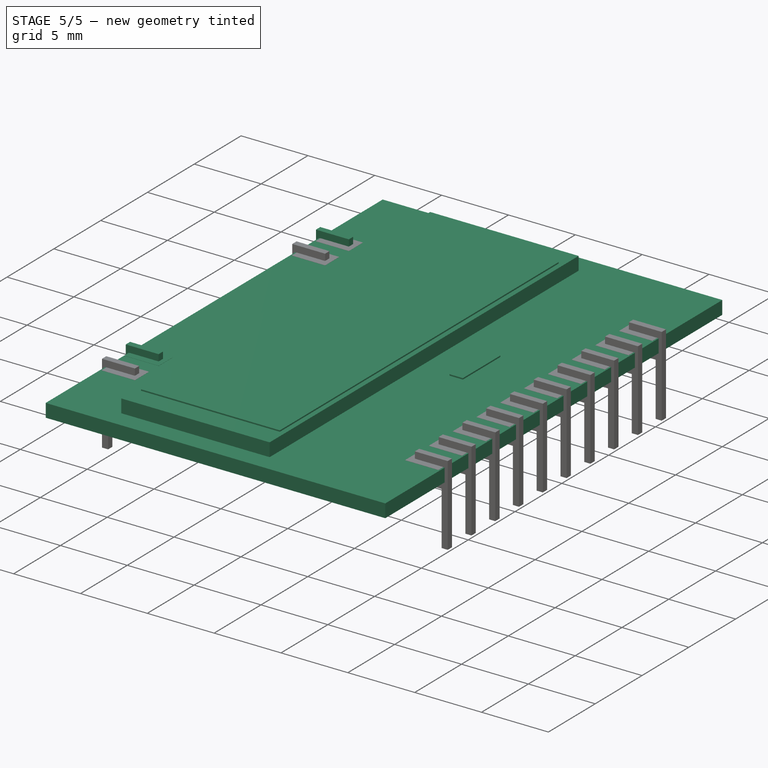
[diagram: stage 5 of 5 — iso view after this stage's code; geometry added in this stage tinted green]
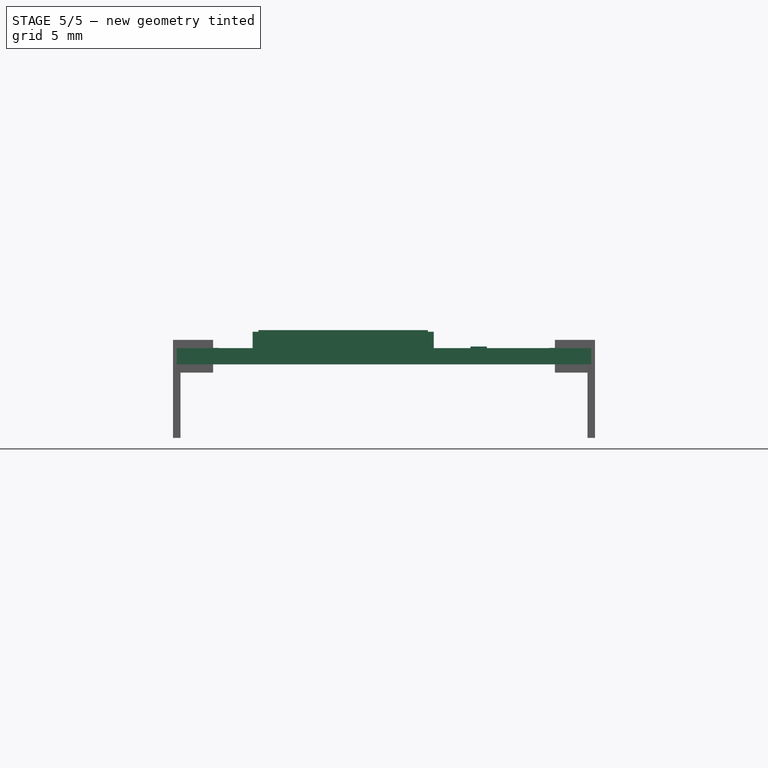
[diagram: stage 5 of 5 — front view after this stage's code; geometry added in this stage tinted green]
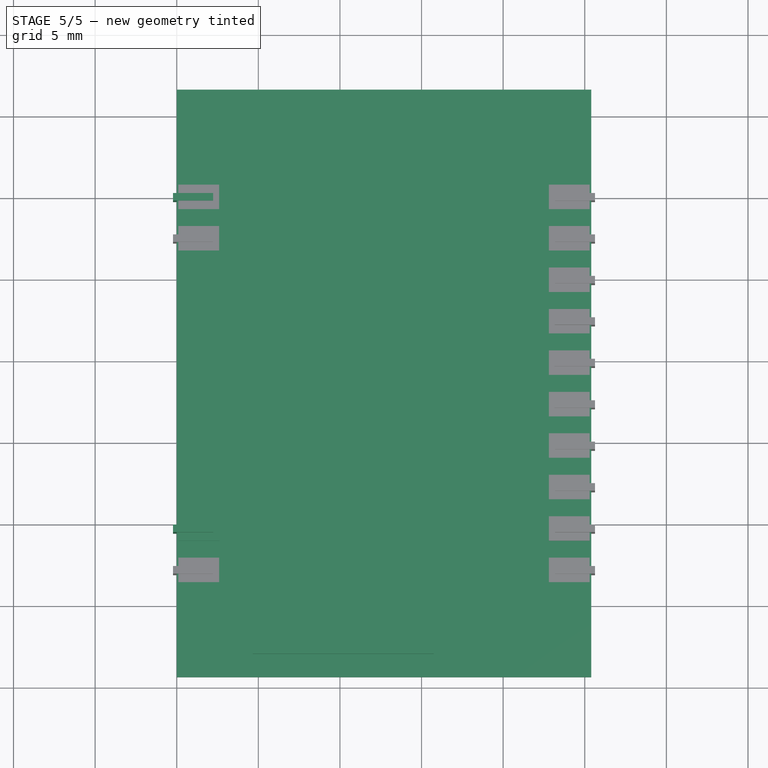
[diagram: stage 5 of 5 — top view after this stage's code; geometry added in this stage tinted green]
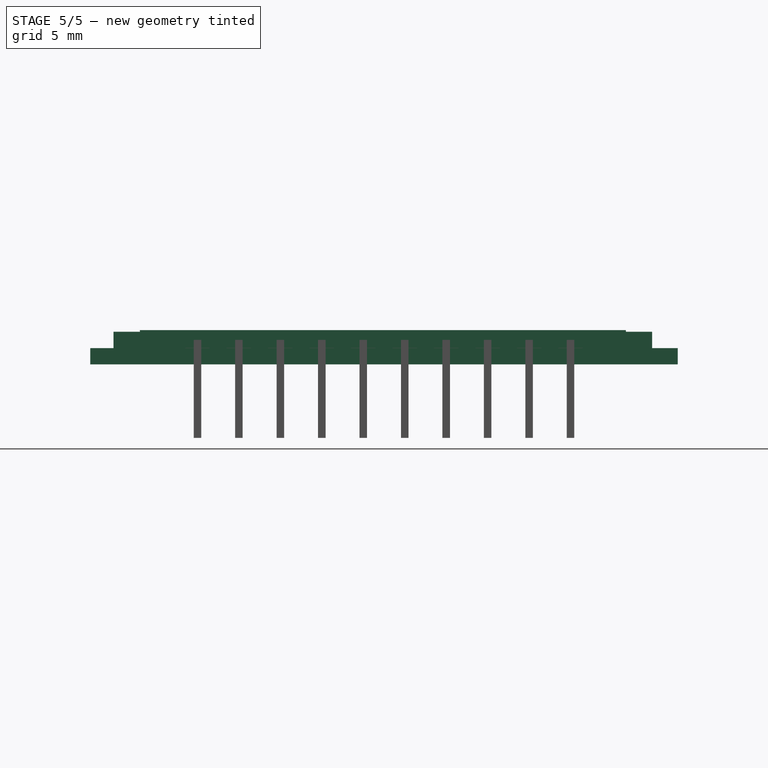
[diagram: stage 5 of 5 — right view after this stage's code; geometry added in this stage tinted green]
FEATURE [Sketcher::SketchObject] Sketch
  MapMode = 5
  Support = -> [XY_Plane]
  sketch-geometry (4):
    g0: LineSegment StartX=0 StartY=6.57 StartZ=0 EndX=25.4 EndY=6.57 EndZ=0
    g1: LineSegment StartX=25.4 StartY=6.57 StartZ=0 EndX=25.4 EndY=-29.43 EndZ=0
    g2: LineSegment StartX=25.4 StartY=-29.43 StartZ=0 EndX=0 EndY=-29.43 EndZ=0
    g3: LineSegment StartX=0 StartY=-29.43 StartZ=0 EndX=0 EndY=6.57 EndZ=0
  constraints (12):
    c: Coincident(g0,g1)
    c: Coincident(g1,g2)
    c: Coincident(g2,g3)
    c: Coincident(g3,g0)
    c: Horizontal(g0)
    c: Horizontal(g2)
    c: Vertical(g1)
    c: Vertical(g3)
    c: DistanceX(g0,g0) = 25.4
    c: DistanceY(g2,g0) = 36
    c: DistanceY(g-1,g0) = 6.57
    c: DistanceX(g0,g-1) = 0
FEATURE [PartDesign::Pad] Pad
  Length = 1
  Length2 = 100
  Profile = -> Sketch
  Type = 0
FEATURE [PartDesign::Body] Body
  Group = -> [Sketch,Pad]
  Origin = -> BodyOrigin
  Tip = -> Pad
FEATURE [Sketcher::SketchObject] Sketch001
  MapMode = 5
  Placement = pos=(0,0,0) rot=(1,0,0;1.5708rad)
  Support = -> [XZ_Plane001]
  sketch-geometry (10):
    g0: LineSegment StartX=2.23 StartY=0.5 StartZ=0 EndX=2.23 EndY=1 EndZ=0
    g1: LineSegment StartX=2.23 StartY=1 StartZ=0 EndX=-0.23 EndY=1 EndZ=0
    g2: LineSegment StartX=-0.23 StartY=1 StartZ=0 EndX=-0.23 EndY=-5 EndZ=0
    g3: LineSegment StartX=-0.23 StartY=-5 StartZ=0 EndX=0.23 EndY=-5 EndZ=0
    g4: LineSegment StartX=0.23 StartY=-5 StartZ=0 EndX=0.23 EndY=-1 EndZ=0
    g5: LineSegment StartX=0.23 StartY=-1 StartZ=0 EndX=2.23 EndY=-1 EndZ=0
    g6: LineSegment StartX=2.23 StartY=-1 StartZ=0 EndX=2.23 EndY=-0.5 EndZ=0
    g7: LineSegment StartX=2.23 StartY=-0.5 StartZ=0 EndX=0.23 EndY=-0.5 EndZ=0
    g8: LineSegment StartX=0.23 StartY=-0.5 StartZ=0 EndX=0.23 EndY=0.5 EndZ=0
    g9: LineSegment StartX=0.23 StartY=0.5 StartZ=0 EndX=2.23 EndY=0.5 EndZ=0
  constraints (30):
    c: Vertical(g0)
    c: Coincident(g0,g1)
    c: Horizontal(g1)
    c: Coincident(g1,g2)
    c: Vertical(g2)
    c: Coincident(g2,g3)
    c: Horizontal(g3)
    c: Coincident(g3,g4)
    c: Vertical(g4)
    c: Coincident(g4,g5)
    c: Horizontal(g5)
    c: Coincident(g5,g6)
    c: Vertical(g6)
    c: Coincident(g6,g7)
    c: Horizontal(g7)
    c: Coincident(g7,g8)
    c: Vertical(g8)
    c: Coincident(g8,g9)
    c: Coincident(g9,g0)
    c: Horizontal(g9)
    c: DistanceY(g7,g8) = 1
    c: DistanceX(g7,g6) = 2
    c: DistanceX(g8,g0) = 2
    c: DistanceY(g5,g6) = 0.5
    c: DistanceY(g0,g0) = 0.5
    c: DistanceX(g1,g0) = 2.46
    c: DistanceY(g3,g4) = 4
    c: DistanceX(g4,g5) = 2
    c: DistanceX(g1,g-1) = 0.23
    c: DistanceY(g-1,g1) = 1
FEATURE [PartDesign::Pad] Pad001
  Length = 0.46
  Length2 = 100
  Placement = pos=(0,0,0) rot=(1,0,0;1.5708rad)
  Profile = -> Sketch001
  Type = 0
FEATURE [PartDesign::Body] Body001  label="Pin002"
  Group = -> [Sketch001,Pad001]
  Origin = -> BodyOrigin001
  Placement = pos=(0,0.23,0.5) rot=(0,0,1;0rad)
  Tip = -> Pad001
FEATURE [Part::Box] Box  label="Kub"
  AttacherType = Attacher::AttachEngine3D
  Height = 0.3
  Length = 2.5
  Placement = pos=(0.1,-0.75,0.71) rot=(0,0,1;0rad)
  Width = 1.5
FEATURE [Part::MultiFuse] Fusion  label="Pin001"
  Shapes = -> [Body001,Box]
FEATURE [Sketcher::SketchObject] Sketch002
  MapMode = 5
  Placement = pos=(0,0,0) rot=(1,0,0;1.5708rad)
  Support = -> [XZ_Plane002]
  sketch-geometry (10):
    g0: LineSegment StartX=2.23 StartY=0.5 StartZ=0 EndX=2.23 EndY=1 EndZ=0
    g1: LineSegment StartX=2.23 StartY=1 StartZ=0 EndX=-0.23 EndY=1 EndZ=0
    g2: LineSegment StartX=-0.23 StartY=1 StartZ=0 EndX=-0.23 EndY=-5 EndZ=0
    g3: LineSegment StartX=-0.23 StartY=-5 StartZ=0 EndX=0.23 EndY=-5 EndZ=0
    g4: LineSegment StartX=0.23 StartY=-5 StartZ=0 EndX=0.23 EndY=-1 EndZ=0
    g5: LineSegment StartX=0.23 StartY=-1 StartZ=0 EndX=2.23 EndY=-1 EndZ=0
    g6: LineSegment StartX=2.23 StartY=-1 StartZ=0 EndX=2.23 EndY=-0.5 EndZ=0
    g7: LineSegment StartX=2.23 StartY=-0.5 StartZ=0 EndX=0.23 EndY=-0.5 EndZ=0
    g8: LineSegment StartX=0.23 StartY=-0.5 StartZ=0 EndX=0.23 EndY=0.5 EndZ=0
    g9: LineSegment StartX=0.23 StartY=0.5 StartZ=0 EndX=2.23 EndY=0.5 EndZ=0
  constraints (30):
    c: Vertical(g0)
    c: Coincident(g0,g1)
    c: Horizontal(g1)
    c: Coincident(g1,g2)
    c: Vertical(g2)
    c: Coincident(g2,g3)
    c: Horizontal(g3)
    c: Coincident(g3,g4)
    c: Vertical(g4)
    c: Coincident(g4,g5)
    c: Horizontal(g5)
    c: Coincident(g5,g6)
    c: Vertical(g6)
    c: Coincident(g6,g7)
    c: Horizontal(g7)
    c: Coincident(g7,g8)
    c: Vertical(g8)
    c: Coincident(g8,g9)
    c: Coincident(g9,g0)
    c: Horizontal(g9)
    c: DistanceY(g7,g8) = 1
    c: DistanceX(g7,g6) = 2
    c: DistanceX(g8,g0) = 2
    c: DistanceY(g5,g6) = 0.5
    c: DistanceY(g0,g0) = 0.5
    c: DistanceX(g1,g0) = 2.46
    c: DistanceY(g3,g4) = 4
    c: DistanceX(g4,g5) = 2
    c: DistanceX(g1,g-1) = 0.23
    c: DistanceY(g-1,g1) = 1
FEATURE [PartDesign::Pad] Pad002
  Length = 0.46
  Length2 = 100
  Placement = pos=(0,0,0) rot=(1,0,0;1.5708rad)
  Profile = -> Sketch002
  Type = 0
FEATURE [Part::MultiFuse] Fusion001  label="Pin009"
  Placement = pos=(0,-20.32,0) rot=(0,0,1;0rad)
  Shapes = -> [Body002,Box001]
FEATURE [Part::Box] Box003  label="DisplayBase"
  AttacherType = Attacher::AttachEngine3D
  Height = 1.2
  Length = 11.1
  Placement = pos=(4.65,-28,0.8) rot=(0,0,1;0rad)
  Width = 33
FEATURE [Part::Box] Box004  label="Display"
  AttacherType = Attacher::AttachEngine3D
  Height = 0.3
  Length = 10.385
  Placement = pos=(5,-26.39,1.8) rot=(0,0,1;0rad)
  Width = 29.78
FEATURE [Part::Box] Box005  label="Kub003"
  AttacherType = Attacher::AttachEngine3D
  Height = 0.3
  Length = 1
  Placement = pos=(18,-12,0.8) rot=(0,0,1;0rad)
  Width = 4
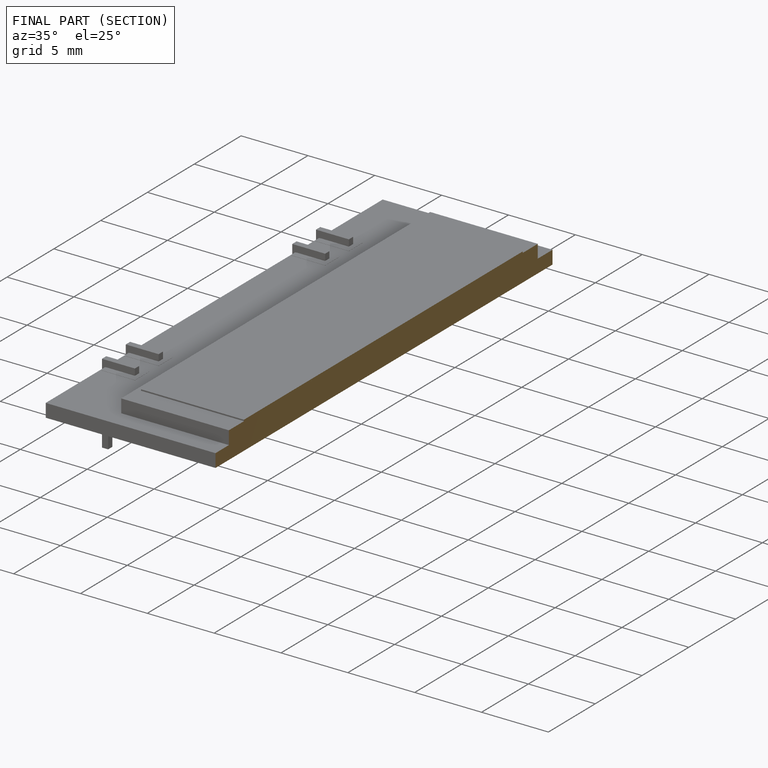
[diagram: finished part — half-section view (interior)]
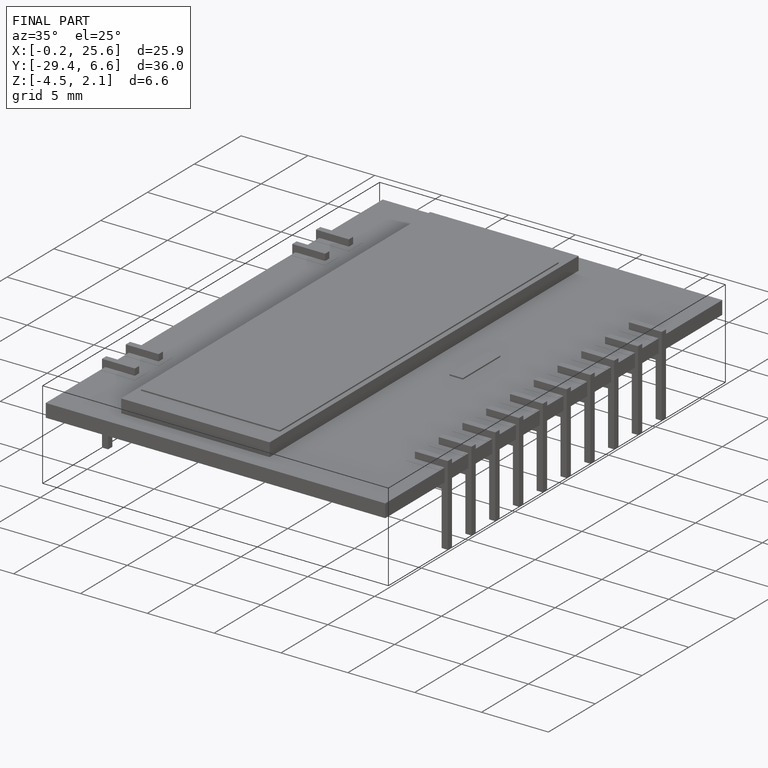
[diagram: finished part — iso view with bounding-box wireframe]
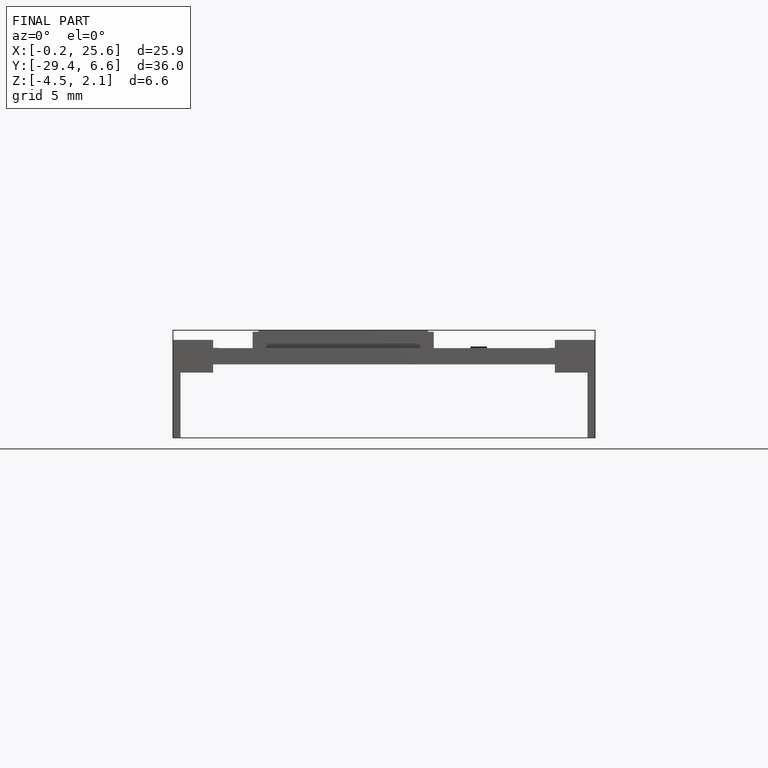
[diagram: finished part — front view with bounding-box wireframe]
